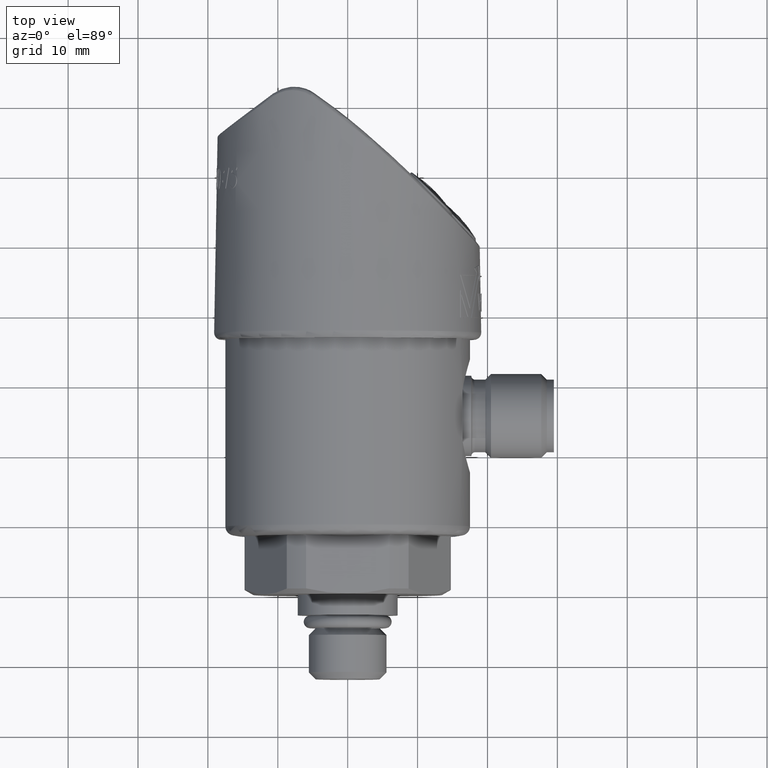
[diagram: clean part render]
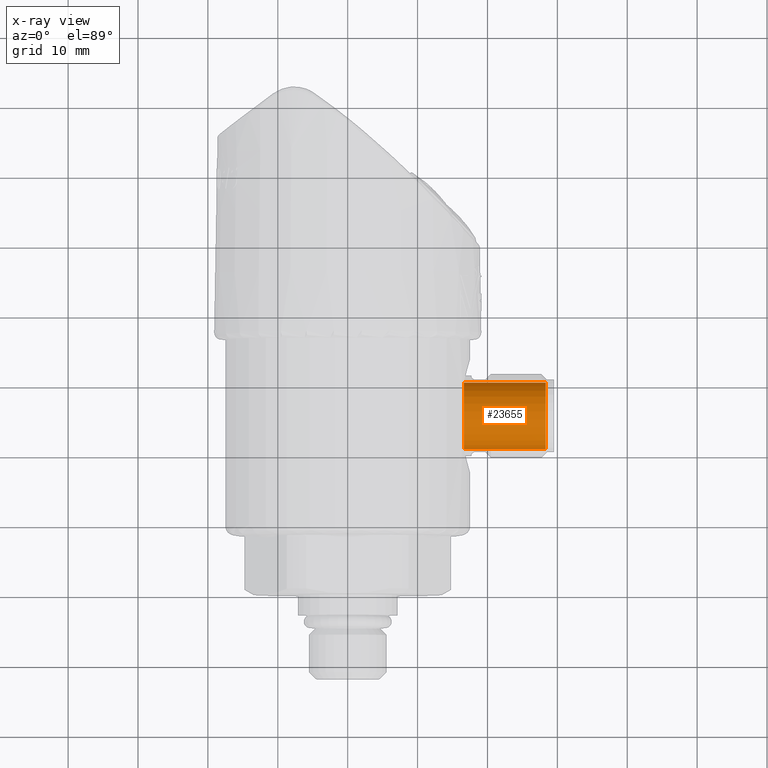
[diagram: x-ray — body ghosted, one internal face saturated and labeled with its STEP entity id]
A machine part, top view, then the same camera in x-ray: the body is ghosted and one INTERNAL B-rep face — a face not visible from any outside direction — is saturated and labeled: STEP entity #23655.
In plain terms, the highlighted cylindrical surface (edge-blend (fillet) strip) has radius 4.75 mm, axis along (-1, 0, 0).
Its self-contained STEP definition (entity closure, byte-faithful):
#5137=CARTESIAN_POINT('',(1.115510810875E0,1.009055118110E0,0.E0));
#5138=DIRECTION('',(1.E0,0.E0,0.E0));
#5139=DIRECTION('',(0.E0,1.E0,0.E0));
#5140=AXIS2_PLACEMENT_3D('',#5137,#5138,#5139);
#5142=DIRECTION('',(1.E0,4.074641630030E-14,0.E0));
#5143=VECTOR('',#5142,4.604765478732E-1);
#5144=CARTESIAN_POINT('',(6.550342630016E-1,8.220472440945E-1,0.E0));
#5145=LINE('',#5144,#5143);
#5146=DIRECTION('',(1.E0,-4.098751935533E-14,0.E0));
#5147=VECTOR('',#5146,4.604765478732E-1);
#5148=CARTESIAN_POINT('',(6.550342630016E-1,1.196062992126E0,0.E0));
#5149=LINE('',#5148,#5147);
#5994=CARTESIAN_POINT('',(6.550342630016E-1,1.009055118110E0,0.E0));
#5995=DIRECTION('',(-1.E0,0.E0,0.E0));
#5996=DIRECTION('',(0.E0,-1.E0,0.E0));
#5997=AXIS2_PLACEMENT_3D('',#5994,#5995,#5996);
#18960=CARTESIAN_POINT('',(1.115510810875E0,8.220472440945E-1,0.E0));
#18961=VERTEX_POINT('',#18960);
#18962=CARTESIAN_POINT('',(1.115510810875E0,1.196062992126E0,0.E0));
#18963=VERTEX_POINT('',#18962);
#18964=CARTESIAN_POINT('',(6.550342630016E-1,8.220472440945E-1,0.E0));
#18965=VERTEX_POINT('',#18964);
#18966=CARTESIAN_POINT('',(6.550342630016E-1,1.196062992126E0,0.E0));
#18967=VERTEX_POINT('',#18966);
#23641=CARTESIAN_POINT('',(1.189566929134E0,1.009055118110E0,0.E0));
#23642=DIRECTION('',(-1.E0,0.E0,0.E0));
#23643=DIRECTION('',(0.E0,1.E0,0.E0));
#23644=AXIS2_PLACEMENT_3D('',#23641,#23642,#23643);
#23645=CYLINDRICAL_SURFACE('',#23644,1.870078740157E-1);
#23647=ORIENTED_EDGE('',*,*,#23646,.T.);
#23648=ORIENTED_EDGE('',*,*,#23636,.F.);
#23650=ORIENTED_EDGE('',*,*,#23649,.F.);
#23652=ORIENTED_EDGE('',*,*,#23651,.F.);
#23653=EDGE_LOOP('',(#23647,#23648,#23650,#23652));
#23654=FACE_OUTER_BOUND('',#23653,.F.);
#5141=CIRCLE('',#5140,1.870078740157E-1);
#5998=CIRCLE('',#5997,1.870078740157E-1);
#23636=EDGE_CURVE('',#18963,#18961,#5141,.T.);
#23646=EDGE_CURVE('',#18965,#18961,#5145,.T.);
#23649=EDGE_CURVE('',#18967,#18963,#5149,.T.);
#23651=EDGE_CURVE('',#18965,#18967,#5998,.T.);
#23655=ADVANCED_FACE('',(#23654),#23645,.F.);